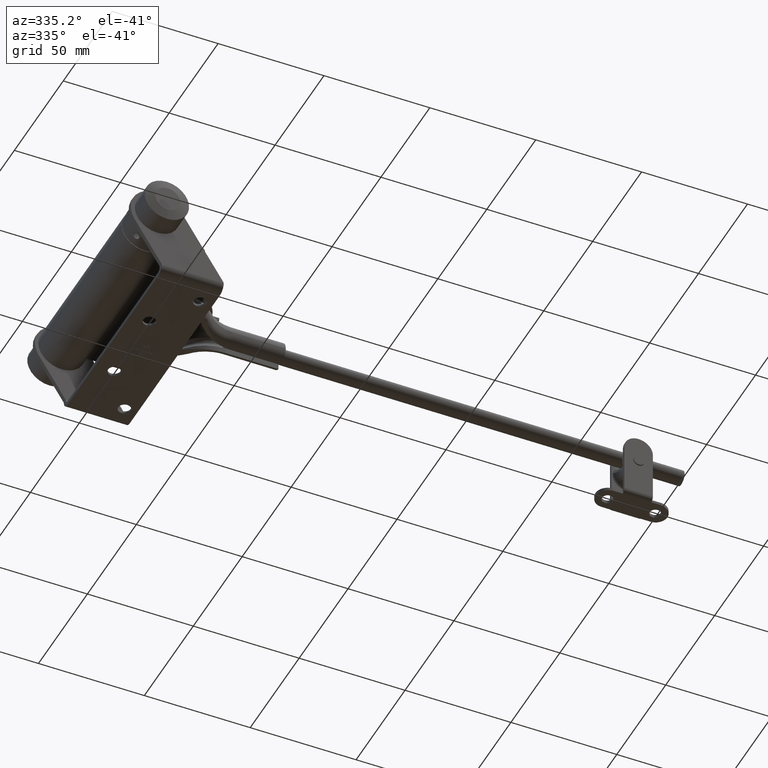
[diagram: clean part render]
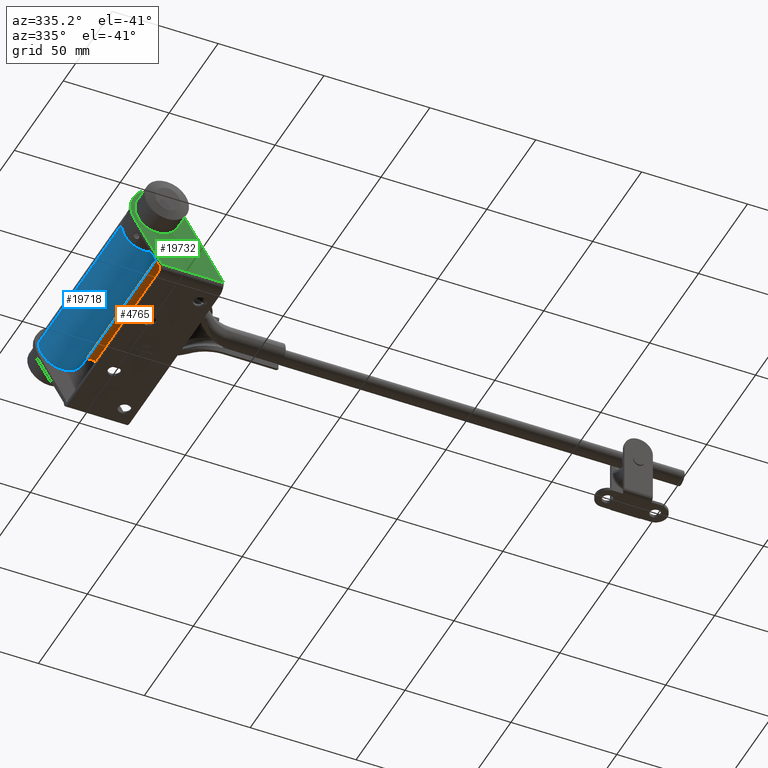
[diagram: same view with three faces highlighted in distinct colors, each labeled with its STEP entity id]
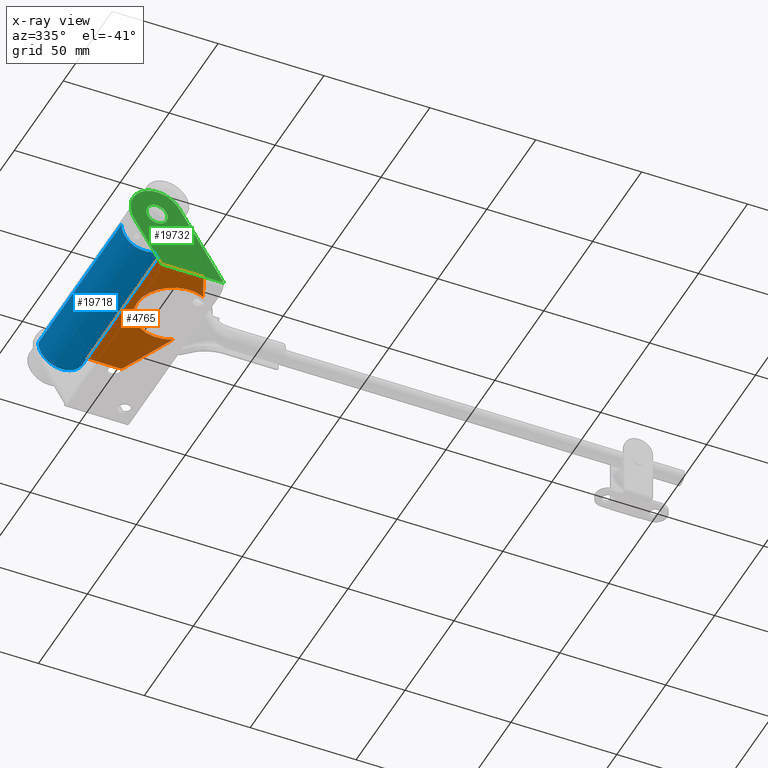
[diagram: x-ray of the same camera — body ghosted, the three highlighted faces saturated]
A machine part, auxiliary view with three faces highlighted in distinct colors.
The next image is the same camera in x-ray (body ghosted, the three faces saturated) — at least one of them is partly hidden behind the body in this view.
Their STEP definitions:

[orange] entity #4765 — the highlighted planar face has unit normal (0, -0, -1).
#174 = LINE ( 'NONE', #19330, #12202 ) ;
#191 = DIRECTION ( 'NONE',  ( 0.000000000000000000, 6.938893903907222067E-15, -1.000000000000000000 ) ) ;
#265 = ORIENTED_EDGE ( 'NONE', *, *, #17512, .T. ) ;
#285 = DIRECTION ( 'NONE',  ( 0.000000000000000000, 0.000000000000000000, 1.000000000000000000 ) ) ;
#447 = DIRECTION ( 'NONE',  ( 0.000000000000000000, -0.9125894917275200191, -0.4088770225734222330 ) ) ;
#583 = DIRECTION ( 'NONE',  ( 0.000000000000000000, 0.000000000000000000, -1.000000000000000000 ) ) ;
#878 = CIRCLE ( 'NONE', #3658, 1.500000000000001332 ) ;
#995 = CARTESIAN_POINT ( 'NONE',  ( 1.000000000000000000, 15.53864412315589405, 40.03188702134284682 ) ) ;
#1959 = EDGE_CURVE ( 'NONE', #11860, #21111, #18176, .T. ) ;
#2331 = CARTESIAN_POINT ( 'NONE',  ( 1.000000000000000000, -42.00000000000000000, 27.20451504694057476 ) ) ;
#2698 = CARTESIAN_POINT ( 'NONE',  ( 1.000000000000000000, -16.56083667958944972, 42.31336075066164426 ) ) ;
#2775 = VERTEX_POINT ( 'NONE', #2331 ) ;
#3033 = CARTESIAN_POINT ( 'NONE',  ( 1.000000000000000000, 42.00000000000000000, 27.20451504694057121 ) ) ;
#3096 = CARTESIAN_POINT ( 'NONE',  ( 1.000000000000000000, 42.00000000000000000, 10.95445115010332238 ) ) ;
#3658 = AXIS2_PLACEMENT_3D ( 'NONE', #15383, #13470, #21597 ) ;
#3717 = VERTEX_POINT ( 'NONE', #3033 ) ;
#4138 = EDGE_CURVE ( 'NONE', #12620, #11860, #9253, .T. ) ;
#4215 = DIRECTION ( 'NONE',  ( -0.000000000000000000, -1.000000000000000000, -0.000000000000000000 ) ) ;
#4556 = AXIS2_PLACEMENT_3D ( 'NONE', #24978, #16653, #583 ) ;
#4683 = CARTESIAN_POINT ( 'NONE',  ( 1.000000000000000000, -41.11331553386013127, 28.57339928453185252 ) ) ;
#4723 = ORIENTED_EDGE ( 'NONE', *, *, #7724, .F. ) ;
#4765 = ADVANCED_FACE ( 'NONE', ( #18414 ), #14271, .T. ) ;
#4851 = VECTOR ( 'NONE', #4215, 1000.000000000000000 ) ;
#4862 = DIRECTION ( 'NONE',  ( 0.000000000000000000, -0.9125894917275200191, 0.4088770225734222330 ) ) ;
#5614 = VERTEX_POINT ( 'NONE', #11343 ) ;
#5615 = VECTOR ( 'NONE', #285, 1000.000000000000000 ) ;
#5712 = EDGE_CURVE ( 'NONE', #21111, #2775, #19972, .T. ) ;
#5718 = ORIENTED_EDGE ( 'NONE', *, *, #7910, .T. ) ;
#6153 = CARTESIAN_POINT ( 'NONE',  ( 1.000000000000000888, 0.000000000000000000, 32.99999999999999289 ) ) ;
#6283 = CARTESIAN_POINT ( 'NONE',  ( 1.000000000000000000, 16.56083667958944972, 42.31336075066164426 ) ) ;
#6638 = CARTESIAN_POINT ( 'NONE',  ( 1.000000000000000000, 42.00000000000000000, 32.99999999999999289 ) ) ;
#6850 = AXIS2_PLACEMENT_3D ( 'NONE', #6283, #20354, #191 ) ;
#7272 = ORIENTED_EDGE ( 'NONE', *, *, #4138, .T. ) ;
#7356 = CARTESIAN_POINT ( 'NONE',  ( 1.000000000000000888, 15.46086696712056963, 40.06835147859813873 ) ) ;
#7609 = ORIENTED_EDGE ( 'NONE', *, *, #20156, .F. ) ;
#7724 = EDGE_CURVE ( 'NONE', #12984, #12194, #12139, .T. ) ;
#7910 = EDGE_CURVE ( 'NONE', #2775, #12194, #16867, .T. ) ;
#8209 = CARTESIAN_POINT ( 'NONE',  ( 1.000000000000000000, -42.00000000000000000, 10.95445115010332238 ) ) ;
#9253 = CIRCLE ( 'NONE', #10480, 2.500000000000002220 ) ;
#9942 = ORIENTED_EDGE ( 'NONE', *, *, #15323, .T. ) ;
#9992 = ORIENTED_EDGE ( 'NONE', *, *, #5712, .T. ) ;
#10141 = CARTESIAN_POINT ( 'NONE',  ( 1.000000000000000000, 42.50000000000000000, 10.95445115010332238 ) ) ;
#10384 = DIRECTION ( 'NONE',  ( 0.000000000000000000, 0.000000000000000000, -1.000000000000000000 ) ) ;
#10480 = AXIS2_PLACEMENT_3D ( 'NONE', #2698, #18841, #13042 ) ;
#10886 = AXIS2_PLACEMENT_3D ( 'NONE', #20222, #19868, #22073 ) ;
#11343 = CARTESIAN_POINT ( 'NONE',  ( 1.000000000000000000, 41.11331553386013127, 28.57339928453185252 ) ) ;
#11544 = VERTEX_POINT ( 'NONE', #995 ) ;
#11860 = VERTEX_POINT ( 'NONE', #22882 ) ;
#12139 = LINE ( 'NONE', #10141, #4851 ) ;
#12194 = VERTEX_POINT ( 'NONE', #8209 ) ;
#12202 = VECTOR ( 'NONE', #4862, 999.9999999999998863 ) ;
#12620 = VERTEX_POINT ( 'NONE', #19923 ) ;
#12773 = VECTOR ( 'NONE', #10384, 1000.000000000000000 ) ;
#12984 = VERTEX_POINT ( 'NONE', #3096 ) ;
#13042 = DIRECTION ( 'NONE',  ( 0.000000000000000000, -2.775557561562888827E-14, -1.000000000000000000 ) ) ;
#13265 = CARTESIAN_POINT ( 'NONE',  ( 1.000000000000000000, -41.11331553386013127, 28.57339928453185252 ) ) ;
#13468 = DIRECTION ( 'NONE',  ( 0.000000000000000000, 0.000000000000000000, -1.000000000000000000 ) ) ;
#13470 = DIRECTION ( 'NONE',  ( 1.000000000000000000, 0.000000000000000000, 0.000000000000000000 ) ) ;
#13528 = CIRCLE ( 'NONE', #6850, 2.500000000000002220 ) ;
#13645 = DIRECTION ( 'NONE',  ( 1.000000000000000000, 0.000000000000000000, 0.000000000000000000 ) ) ;
#13828 = LINE ( 'NONE', #6638, #5615 ) ;
#13836 = ORIENTED_EDGE ( 'NONE', *, *, #1959, .T. ) ;
#13844 = VERTEX_POINT ( 'NONE', #7356 ) ;
#13949 = EDGE_CURVE ( 'NONE', #11544, #13844, #13528, .T. ) ;
#14271 = PLANE ( 'NONE',  #4556 ) ;
#15053 = EDGE_CURVE ( 'NONE', #3717, #5614, #878, .T. ) ;
#15323 = EDGE_CURVE ( 'NONE', #12984, #3717, #13828, .T. ) ;
#15383 = CARTESIAN_POINT ( 'NONE',  ( 1.000000000000000000, 40.50000000000000000, 27.20451504694057121 ) ) ;
#16653 = DIRECTION ( 'NONE',  ( 1.000000000000000000, 0.000000000000000000, 0.000000000000000000 ) ) ;
#16867 = LINE ( 'NONE', #22497, #12773 ) ;
#16926 = AXIS2_PLACEMENT_3D ( 'NONE', #23810, #13645, #13468 ) ;
#17319 = VERTEX_POINT ( 'NONE', #24512 ) ;
#17512 = EDGE_CURVE ( 'NONE', #5614, #11544, #174, .T. ) ;
#17624 = DIRECTION ( 'NONE',  ( 1.000000000000000000, -0.000000000000000000, -0.000000000000000000 ) ) ;
#18176 = LINE ( 'NONE', #4683, #18792 ) ;
#18414 = FACE_OUTER_BOUND ( 'NONE', #20814, .T. ) ;
#18535 = ORIENTED_EDGE ( 'NONE', *, *, #13949, .T. ) ;
#18792 = VECTOR ( 'NONE', #447, 999.9999999999998863 ) ;
#18841 = DIRECTION ( 'NONE',  ( -1.000000000000000000, -0.000000000000000000, -0.000000000000000000 ) ) ;
#19330 = CARTESIAN_POINT ( 'NONE',  ( 1.000000000000000000, 15.53864412315589760, 40.03188702134285393 ) ) ;
#19670 = EDGE_CURVE ( 'NONE', #12620, #17319, #24952, .T. ) ;
#19868 = DIRECTION ( 'NONE',  ( 1.000000000000000000, -0.000000000000000000, -0.000000000000000000 ) ) ;
#19923 = CARTESIAN_POINT ( 'NONE',  ( 1.000000000000000888, -15.46086696712056785, 40.06835147859813873 ) ) ;
#19972 = CIRCLE ( 'NONE', #16926, 1.500000000000001332 ) ;
#20156 = EDGE_CURVE ( 'NONE', #17319, #13844, #21433, .T. ) ;
#20222 = CARTESIAN_POINT ( 'NONE',  ( 1.000000000000000888, 0.000000000000000000, 32.99999999999999289 ) ) ;
#20354 = DIRECTION ( 'NONE',  ( -1.000000000000000000, -0.000000000000000000, -0.000000000000000000 ) ) ;
#20814 = EDGE_LOOP ( 'NONE', ( #9992, #5718, #4723, #9942, #23050, #265, #18535, #7609, #22158, #7272, #13836 ) ) ;
#21111 = VERTEX_POINT ( 'NONE', #13265 ) ;
#21433 = CIRCLE ( 'NONE', #23429, 17.00000000000001421 ) ;
#21597 = DIRECTION ( 'NONE',  ( 0.000000000000000000, 0.000000000000000000, -1.000000000000000000 ) ) ;
#22073 = DIRECTION ( 'NONE',  ( 0.000000000000000000, 0.000000000000000000, -1.000000000000000000 ) ) ;
#22158 = ORIENTED_EDGE ( 'NONE', *, *, #19670, .F. ) ;
#22227 = DIRECTION ( 'NONE',  ( 0.000000000000000000, 0.000000000000000000, -1.000000000000000000 ) ) ;
#22497 = CARTESIAN_POINT ( 'NONE',  ( 1.000000000000000000, -42.00000000000000000, 10.95445115010332238 ) ) ;
#22882 = CARTESIAN_POINT ( 'NONE',  ( 1.000000000000000000, -15.53864412315589405, 40.03188702134284682 ) ) ;
#23050 = ORIENTED_EDGE ( 'NONE', *, *, #15053, .T. ) ;
#23429 = AXIS2_PLACEMENT_3D ( 'NONE', #6153, #17624, #22227 ) ;
#23810 = CARTESIAN_POINT ( 'NONE',  ( 1.000000000000000000, -40.50000000000000000, 27.20451504694057476 ) ) ;
#24512 = CARTESIAN_POINT ( 'NONE',  ( 1.000000000000000888, 0.000000000000000000, 15.99999999999997868 ) ) ;
#24952 = CIRCLE ( 'NONE', #10886, 17.00000000000001421 ) ;
#24978 = CARTESIAN_POINT ( 'NONE',  ( 1.000000000000000000, 0.000000000000000000, 32.99999999999999289 ) ) ;

[blue] entity #19718 — the highlighted cylindrical surface (edge-blend (fillet) strip) has radius 11 mm, axis along (0, -1, 0).
#553 = CARTESIAN_POINT ( 'NONE',  ( 1.000000000000000000, -42.00000000000000000, 10.95445115010332238 ) ) ;
#875 = CARTESIAN_POINT ( 'NONE',  ( 0.000000000000000000, 42.50000000000000000, 0.000000000000000000 ) ) ;
#970 = DIRECTION ( 'NONE',  ( 0.000000000000000000, 0.000000000000000000, 1.000000000000000000 ) ) ;
#1246 = VERTEX_POINT ( 'NONE', #16479 ) ;
#1315 = CARTESIAN_POINT ( 'NONE',  ( 0.000000000000000000, -42.50000000000000000, 0.000000000000000000 ) ) ;
#1913 = AXIS2_PLACEMENT_3D ( 'NONE', #875, #7057, #970 ) ;
#2109 = EDGE_CURVE ( 'NONE', #1246, #12984, #16330, .T. ) ;
#2148 = CARTESIAN_POINT ( 'NONE',  ( 1.000000000000000000, 42.13220651640506276, 10.95445115010332060 ) ) ;
#3096 = CARTESIAN_POINT ( 'NONE',  ( 1.000000000000000000, 42.00000000000000000, 10.95445115010332238 ) ) ;
#3442 = DIRECTION ( 'NONE',  ( 0.000000000000000000, 1.000000000000000000, 0.000000000000000000 ) ) ;
#4054 = CARTESIAN_POINT ( 'NONE',  ( 0.000000000000000000, 42.50000000000000000, 0.000000000000000000 ) ) ;
#4215 = DIRECTION ( 'NONE',  ( -0.000000000000000000, -1.000000000000000000, -0.000000000000000000 ) ) ;
#4851 = VECTOR ( 'NONE', #4215, 1000.000000000000000 ) ;
#5472 = ORIENTED_EDGE ( 'NONE', *, *, #7440, .T. ) ;
#6134 = CARTESIAN_POINT ( 'NONE',  ( 0.5000000000000000000, 42.50000000000000000, 10.98863048791795372 ) ) ;
#6202 = LINE ( 'NONE', #16665, #26157 ) ;
#6473 = CARTESIAN_POINT ( 'NONE',  ( 0.6320576236962788252, -42.50000000000000711, 10.98262165798043455 ) ) ;
#7057 = DIRECTION ( 'NONE',  ( 0.000000000000000000, 1.000000000000000000, 0.000000000000000000 ) ) ;
#7372 = ORIENTED_EDGE ( 'NONE', *, *, #20841, .T. ) ;
#7440 = EDGE_CURVE ( 'NONE', #9400, #14517, #24499, .T. ) ;
#7704 = VERTEX_POINT ( 'NONE', #22142 ) ;
#7721 = ORIENTED_EDGE ( 'NONE', *, *, #9686, .F. ) ;
#7724 = EDGE_CURVE ( 'NONE', #12984, #12194, #12139, .T. ) ;
#8209 = CARTESIAN_POINT ( 'NONE',  ( 1.000000000000000000, -42.00000000000000000, 10.95445115010332238 ) ) ;
#9400 = VERTEX_POINT ( 'NONE', #25003 ) ;
#9686 = EDGE_CURVE ( 'NONE', #1246, #7704, #15534, .T. ) ;
#10141 = CARTESIAN_POINT ( 'NONE',  ( 1.000000000000000000, 42.50000000000000000, 10.95445115010332238 ) ) ;
#10283 = CARTESIAN_POINT ( 'NONE',  ( 1.000000000000000000, 42.00000000000000000, 10.95445115010332238 ) ) ;
#12139 = LINE ( 'NONE', #10141, #4851 ) ;
#12194 = VERTEX_POINT ( 'NONE', #8209 ) ;
#12984 = VERTEX_POINT ( 'NONE', #3096 ) ;
#13524 = CYLINDRICAL_SURFACE ( 'NONE', #24108, 11.00000000000000000 ) ;
#14246 = CARTESIAN_POINT ( 'NONE',  ( 0.6320638355095583583, 42.50000000000000000, 10.98262137533314053 ) ) ;
#14357 = EDGE_LOOP ( 'NONE', ( #17067, #7721, #24296, #25872, #7372, #5472 ) ) ;
#14517 = VERTEX_POINT ( 'NONE', #25525 ) ;
#15534 = CIRCLE ( 'NONE', #1913, 11.00000000000000000 ) ;
#16277 = CARTESIAN_POINT ( 'NONE',  ( 0.9455413487506212356, 42.26169591073746545, 10.95967659329186716 ) ) ;
#16330 = B_SPLINE_CURVE_WITH_KNOTS ( 'NONE', 3,
 ( #6134, #14246, #24259, #16277, #2148, #10283 ),
 .UNSPECIFIED., .F., .F.,
 ( 4, 2, 4 ),
 ( 0.000000000000000000, 0.0003909633440213430735, 0.0007819266880426861471 ),
 .UNSPECIFIED. ) ;
#16479 = CARTESIAN_POINT ( 'NONE',  ( 0.5000000000000000000, 42.50000000000000000, 10.98863048791795372 ) ) ;
#16665 = CARTESIAN_POINT ( 'NONE',  ( 0.000000000000000000, 42.50000000000000000, -11.00000000000000000 ) ) ;
#17067 = ORIENTED_EDGE ( 'NONE', *, *, #23201, .F. ) ;
#18562 = CARTESIAN_POINT ( 'NONE',  ( 0.9457098844811064886, -42.26139859333469673, 10.95966138540570256 ) ) ;
#19718 = ADVANCED_FACE ( 'NONE', ( #21756 ), #13524, .T. ) ;
#20127 = B_SPLINE_CURVE_WITH_KNOTS ( 'NONE', 3,
 ( #553, #24686, #18562, #20704, #6473, #20622 ),
 .UNSPECIFIED., .F., .F.,
 ( 4, 2, 4 ),
 ( 0.000000000000000000, 0.0003909636995437005581, 0.0007819273990874011163 ),
 .UNSPECIFIED. ) ;
#20622 = CARTESIAN_POINT ( 'NONE',  ( 0.5000000000000000000, -42.50000000000000000, 10.98863048791795372 ) ) ;
#20704 = CARTESIAN_POINT ( 'NONE',  ( 0.7613903877043944890, -42.44571469679298303, 10.97400699589121587 ) ) ;
#20841 = EDGE_CURVE ( 'NONE', #12194, #9400, #20127, .T. ) ;
#21756 = FACE_OUTER_BOUND ( 'NONE', #14357, .T. ) ;
#21909 = DIRECTION ( 'NONE',  ( -0.000000000000000000, -1.000000000000000000, -0.000000000000000000 ) ) ;
#22142 = CARTESIAN_POINT ( 'NONE',  ( 0.000000000000000000, 42.50000000000000000, -11.00000000000000000 ) ) ;
#22678 = DIRECTION ( 'NONE',  ( -0.000000000000000000, -1.000000000000000000, -0.000000000000000000 ) ) ;
#23201 = EDGE_CURVE ( 'NONE', #7704, #14517, #6202, .T. ) ;
#24038 = DIRECTION ( 'NONE',  ( 0.000000000000000000, 0.000000000000000000, -1.000000000000000000 ) ) ;
#24108 = AXIS2_PLACEMENT_3D ( 'NONE', #4054, #21909, #24038 ) ;
#24259 = CARTESIAN_POINT ( 'NONE',  ( 0.7610640920791065245, 42.44591185560618385, 10.97403029517845496 ) ) ;
#24296 = ORIENTED_EDGE ( 'NONE', *, *, #2109, .T. ) ;
#24499 = CIRCLE ( 'NONE', #25428, 11.00000000000000000 ) ;
#24686 = CARTESIAN_POINT ( 'NONE',  ( 0.9999999999999997780, -42.13220192141694298, 10.95445115010332238 ) ) ;
#25003 = CARTESIAN_POINT ( 'NONE',  ( 0.5000000000000000000, -42.50000000000000000, 10.98863048791795372 ) ) ;
#25428 = AXIS2_PLACEMENT_3D ( 'NONE', #1315, #3442, #25894 ) ;
#25525 = CARTESIAN_POINT ( 'NONE',  ( 0.000000000000000000, -42.50000000000000000, -11.00000000000000000 ) ) ;
#25872 = ORIENTED_EDGE ( 'NONE', *, *, #7724, .T. ) ;
#25894 = DIRECTION ( 'NONE',  ( 0.000000000000000000, 0.000000000000000000, 1.000000000000000000 ) ) ;
#26157 = VECTOR ( 'NONE', #22678, 1000.000000000000000 ) ;

[green] entity #19732 — the highlighted planar face has unit normal (0, -1, -0).
#42 = DIRECTION ( 'NONE',  ( 0.000000000000000000, 1.000000000000000000, 0.000000000000000000 ) ) ;
#891 = VERTEX_POINT ( 'NONE', #24212 ) ;
#1041 = LINE ( 'NONE', #17898, #7051 ) ;
#1277 = DIRECTION ( 'NONE',  ( 0.000000000000000000, -1.000000000000000000, -2.312964634635743450E-16 ) ) ;
#1590 = ORIENTED_EDGE ( 'NONE', *, *, #25661, .T. ) ;
#1752 = CARTESIAN_POINT ( 'NONE',  ( -9.499999999999998224, -50.00000000000001421, 36.49999999999998579 ) ) ;
#1930 = CARTESIAN_POINT ( 'NONE',  ( 22.00000000000000000, -50.00000000000000711, -1.387778780781445676E-14 ) ) ;
#2566 = EDGE_CURVE ( 'NONE', #19550, #891, #20707, .T. ) ;
#2568 = DIRECTION ( 'NONE',  ( 0.000000000000000000, 0.000000000000000000, -1.000000000000000000 ) ) ;
#2795 = FACE_OUTER_BOUND ( 'NONE', #6260, .T. ) ;
#2929 = VERTEX_POINT ( 'NONE', #5191 ) ;
#3161 = VERTEX_POINT ( 'NONE', #24950 ) ;
#3315 = VECTOR ( 'NONE', #21469, 1000.000000000000114 ) ;
#3985 = EDGE_CURVE ( 'NONE', #2929, #891, #1041, .T. ) ;
#4385 = FACE_BOUND ( 'NONE', #8259, .T. ) ;
#5111 = ORIENTED_EDGE ( 'NONE', *, *, #12563, .T. ) ;
#5150 = LINE ( 'NONE', #20124, #24769 ) ;
#5191 = CARTESIAN_POINT ( 'NONE',  ( 21.91889549805048176, -50.00000000000000711, 3.999999999999985345 ) ) ;
#6002 = DIRECTION ( 'NONE',  ( 0.000000000000000000, -1.000000000000000000, -2.312964634635743450E-16 ) ) ;
#6260 = EDGE_LOOP ( 'NONE', ( #9692, #10744, #19494, #24370, #14332, #21815, #20194 ) ) ;
#6366 = AXIS2_PLACEMENT_3D ( 'NONE', #19138, #10941, #13332 ) ;
#6791 = DIRECTION ( 'NONE',  ( 0.000000000000000000, -1.000000000000000000, -2.312964634635743450E-16 ) ) ;
#6940 = AXIS2_PLACEMENT_3D ( 'NONE', #22630, #6791, #2568 ) ;
#7051 = VECTOR ( 'NONE', #23664, 1000.000000000000000 ) ;
#7287 = EDGE_CURVE ( 'NONE', #2929, #3161, #12480, .T. ) ;
#7325 = CARTESIAN_POINT ( 'NONE',  ( 23.78153290667607322, -50.00000000000000711, 1.091077284676865267 ) ) ;
#7360 = VERTEX_POINT ( 'NONE', #18982 ) ;
#8259 = EDGE_LOOP ( 'NONE', ( #5111, #1590 ) ) ;
#8282 = AXIS2_PLACEMENT_3D ( 'NONE', #13421, #15601, #25629 ) ;
#8362 = EDGE_CURVE ( 'NONE', #7360, #19550, #5150, .T. ) ;
#8484 = CARTESIAN_POINT ( 'NONE',  ( 1.159727649771815416, -50.00000000000001421, 38.02841530792049696 ) ) ;
#8773 = VERTEX_POINT ( 'NONE', #1752 ) ;
#9317 = VERTEX_POINT ( 'NONE', #10270 ) ;
#9692 = ORIENTED_EDGE ( 'NONE', *, *, #3985, .F. ) ;
#9759 = CARTESIAN_POINT ( 'NONE',  ( -9.499999999999998224, -50.00000000000001421, 31.50000000000001421 ) ) ;
#9979 = LINE ( 'NONE', #7325, #3315 ) ;
#10270 = CARTESIAN_POINT ( 'NONE',  ( -9.499999999999998224, -50.00000000000001421, 26.49999999999997513 ) ) ;
#10744 = ORIENTED_EDGE ( 'NONE', *, *, #7287, .T. ) ;
#10912 = VERTEX_POINT ( 'NONE', #8484 ) ;
#10941 = DIRECTION ( 'NONE',  ( 0.000000000000000000, 1.000000000000000000, 0.000000000000000000 ) ) ;
#11200 = EDGE_CURVE ( 'NONE', #21114, #7360, #25009, .T. ) ;
#11796 = DIRECTION ( 'NONE',  ( 0.000000000000000000, 0.000000000000000000, -1.000000000000000000 ) ) ;
#11824 = DIRECTION ( 'NONE',  ( 0.5222732246336361239, 1.972445845501681311E-16, -0.8527782119817458595 ) ) ;
#12480 = CIRCLE ( 'NONE', #6940, 2.000000000000000000 ) ;
#12563 = EDGE_CURVE ( 'NONE', #8773, #9317, #21466, .T. ) ;
#12610 = AXIS2_PLACEMENT_3D ( 'NONE', #15574, #42, #22212 ) ;
#13024 = AXIS2_PLACEMENT_3D ( 'NONE', #23373, #1277, #17365 ) ;
#13332 = DIRECTION ( 'NONE',  ( 0.000000000000000000, 0.000000000000000000, 1.000000000000000000 ) ) ;
#13421 = CARTESIAN_POINT ( 'NONE',  ( -9.315945985420118092, -50.00000000000000711, 3.436226936115598818 ) ) ;
#13601 = CARTESIAN_POINT ( 'NONE',  ( -7.610389561456628371, -50.00000000000000711, 4.480773385382875063 ) ) ;
#14332 = ORIENTED_EDGE ( 'NONE', *, *, #11200, .T. ) ;
#14932 = AXIS2_PLACEMENT_3D ( 'NONE', #1930, #6002, #15788 ) ;
#15574 = CARTESIAN_POINT ( 'NONE',  ( -9.499999999999998224, -50.00000000000001421, 31.49999999999997868 ) ) ;
#15601 = DIRECTION ( 'NONE',  ( -0.000000000000000000, 1.000000000000000000, 2.312964634635743450E-16 ) ) ;
#15788 = DIRECTION ( 'NONE',  ( 0.000000000000000000, 2.312964634635743450E-16, -1.000000000000000000 ) ) ;
#16211 = CIRCLE ( 'NONE', #13024, 12.50000000000000000 ) ;
#17365 = DIRECTION ( 'NONE',  ( 0.000000000000000000, 0.000000000000000000, -1.000000000000000000 ) ) ;
#17898 = CARTESIAN_POINT ( 'NONE',  ( 22.00000000000000000, -50.00000000000000711, 3.999999999999985345 ) ) ;
#18982 = CARTESIAN_POINT ( 'NONE',  ( -20.15972764977183473, -50.00000000000000711, 24.97158469207958476 ) ) ;
#19138 = CARTESIAN_POINT ( 'NONE',  ( -9.499999999999998224, -50.00000000000001421, 31.49999999999997868 ) ) ;
#19494 = ORIENTED_EDGE ( 'NONE', *, *, #24350, .T. ) ;
#19550 = VERTEX_POINT ( 'NONE', #13601 ) ;
#19606 = CARTESIAN_POINT ( 'NONE',  ( -9.499999999999998224, -50.00000000000001421, 44.00000000000001421 ) ) ;
#19732 = ADVANCED_FACE ( 'NONE', ( #4385, #2795 ), #20139, .T. ) ;
#19872 = AXIS2_PLACEMENT_3D ( 'NONE', #9759, #23905, #11796 ) ;
#20124 = CARTESIAN_POINT ( 'NONE',  ( 2.462077607132420631, -50.00000000000000000, -11.96575333116404316 ) ) ;
#20139 = PLANE ( 'NONE',  #14932 ) ;
#20194 = ORIENTED_EDGE ( 'NONE', *, *, #2566, .T. ) ;
#20707 = CIRCLE ( 'NONE', #8282, 2.000000000000000000 ) ;
#21114 = VERTEX_POINT ( 'NONE', #19606 ) ;
#21466 = CIRCLE ( 'NONE', #12610, 5.000000000000004441 ) ;
#21469 = DIRECTION ( 'NONE',  ( -0.5222732246336361239, -1.972445845501681311E-16, 0.8527782119817458595 ) ) ;
#21815 = ORIENTED_EDGE ( 'NONE', *, *, #8362, .T. ) ;
#22212 = DIRECTION ( 'NONE',  ( 0.000000000000000000, 0.000000000000000000, 1.000000000000000000 ) ) ;
#22630 = CARTESIAN_POINT ( 'NONE',  ( 19.99999999999999645, -50.00000000000000711, 3.436226936115600594 ) ) ;
#23373 = CARTESIAN_POINT ( 'NONE',  ( -9.499999999999998224, -50.00000000000001421, 31.50000000000001421 ) ) ;
#23664 = DIRECTION ( 'NONE',  ( -1.000000000000000000, -0.000000000000000000, -0.000000000000000000 ) ) ;
#23905 = DIRECTION ( 'NONE',  ( 0.000000000000000000, -1.000000000000000000, -2.312964634635743450E-16 ) ) ;
#24212 = CARTESIAN_POINT ( 'NONE',  ( -7.397050487369632776, -50.00000000000000711, 3.999999999999985345 ) ) ;
#24350 = EDGE_CURVE ( 'NONE', #3161, #10912, #9979, .T. ) ;
#24370 = ORIENTED_EDGE ( 'NONE', *, *, #25965, .T. ) ;
#24769 = VECTOR ( 'NONE', #11824, 1000.000000000000114 ) ;
#24950 = CARTESIAN_POINT ( 'NONE',  ( 21.70555642396348972, -50.00000000000000711, 4.480773385382874174 ) ) ;
#25009 = CIRCLE ( 'NONE', #19872, 12.50000000000000000 ) ;
#25106 = CIRCLE ( 'NONE', #6366, 5.000000000000004441 ) ;
#25629 = DIRECTION ( 'NONE',  ( 0.000000000000000000, 0.000000000000000000, -1.000000000000000000 ) ) ;
#25661 = EDGE_CURVE ( 'NONE', #9317, #8773, #25106, .T. ) ;
#25965 = EDGE_CURVE ( 'NONE', #10912, #21114, #16211, .T. ) ;